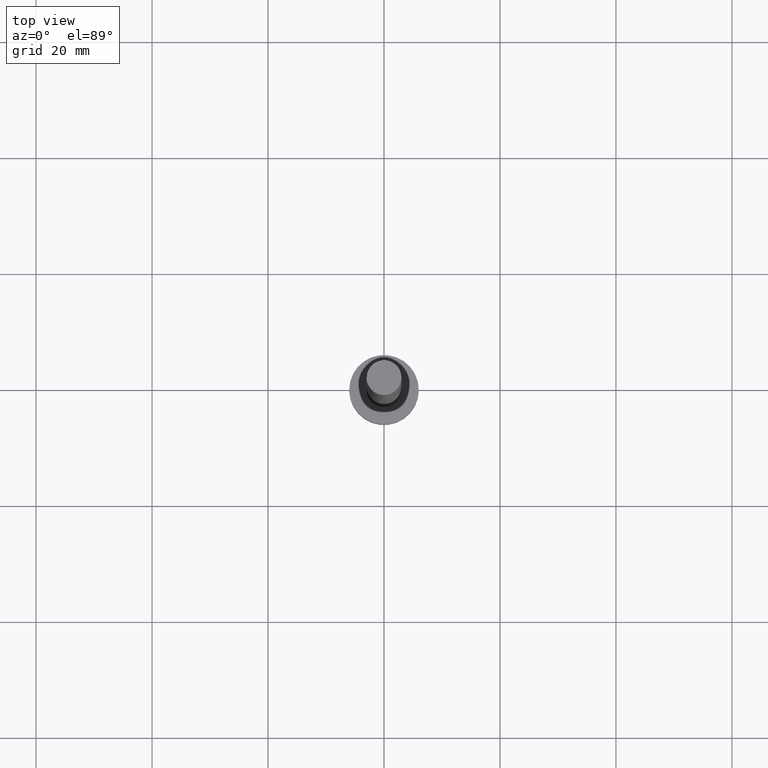
[diagram: clean part render]
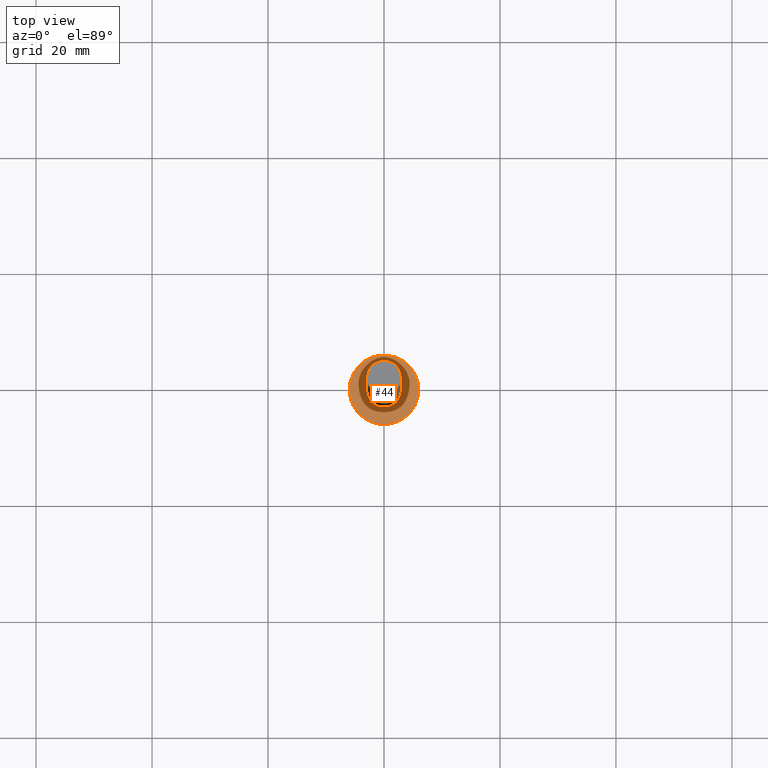
[diagram: same view with one face highlighted and labeled with its STEP entity id]
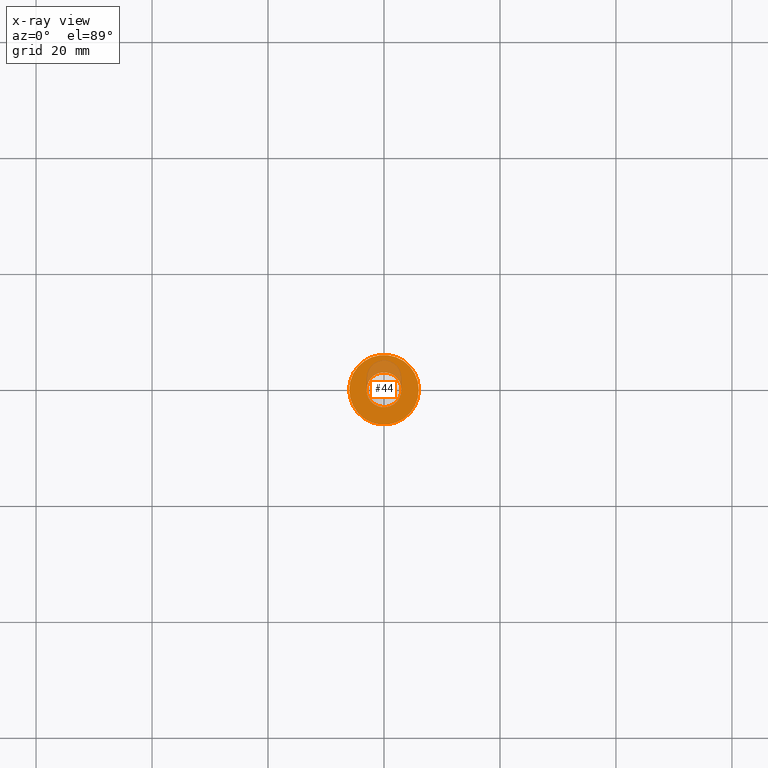
[diagram: x-ray of the same camera — body ghosted, the highlighted face saturated]
A machine part, top view. The second image highlights one B-rep face of the part: STEP entity #44.
The next image is the same camera in x-ray: the body ghosted, the highlighted face saturated — about 15% of this face is hidden behind the body in this view.
In plain terms, the highlighted planar face has unit normal (0, 0, 1).
Its self-contained STEP definition (entity closure, byte-faithful):
#3 = DIRECTION ( 'NONE',  ( 1.000000000000000000, 0.000000000000000000, -0.000000000000000000 ) ) ;
#8 = FACE_BOUND ( 'NONE', #247, .T. ) ;
#13 = VERTEX_POINT ( 'NONE', #75 ) ;
#14 = EDGE_CURVE ( 'NONE', #145, #186, #194, .T. ) ;
#16 = VERTEX_POINT ( 'NONE', #204 ) ;
#22 = AXIS2_PLACEMENT_3D ( 'NONE', #244, #196, #135 ) ;
#32 = CARTESIAN_POINT ( 'NONE',  ( 0.000000000000000000, 0.000000000000000000, 5.000000000000000000 ) ) ;
#36 = CARTESIAN_POINT ( 'NONE',  ( 0.000000000000000000, 0.000000000000000000, 5.000000000000000000 ) ) ;
#44 = ADVANCED_FACE ( 'NONE', ( #8, #53 ), #209, .T. ) ;
#53 = FACE_OUTER_BOUND ( 'NONE', #127, .T. ) ;
#57 = ORIENTED_EDGE ( 'NONE', *, *, #14, .F. ) ;
#75 = CARTESIAN_POINT ( 'NONE',  ( 6.000000000000000888, 7.347880794884120722E-16, 5.000000000000000000 ) ) ;
#81 = CARTESIAN_POINT ( 'NONE',  ( 0.000000000000000000, 0.000000000000000000, 5.000000000000000000 ) ) ;
#82 = DIRECTION ( 'NONE',  ( 0.000000000000000000, 0.000000000000000000, 1.000000000000000000 ) ) ;
#87 = ORIENTED_EDGE ( 'NONE', *, *, #142, .F. ) ;
#88 = AXIS2_PLACEMENT_3D ( 'NONE', #100, #82, #159 ) ;
#96 = CARTESIAN_POINT ( 'NONE',  ( 3.000000000000000444, 3.673940397442060361E-16, 5.000000000000000000 ) ) ;
#100 = CARTESIAN_POINT ( 'NONE',  ( 0.000000000000000000, 0.000000000000000000, 5.000000000000000000 ) ) ;
#102 = DIRECTION ( 'NONE',  ( 1.000000000000000000, 0.000000000000000000, 0.000000000000000000 ) ) ;
#112 = DIRECTION ( 'NONE',  ( 0.000000000000000000, 0.000000000000000000, 1.000000000000000000 ) ) ;
#122 = CIRCLE ( 'NONE', #22, 6.000000000000000888 ) ;
#127 = EDGE_LOOP ( 'NONE', ( #251, #255 ) ) ;
#130 = DIRECTION ( 'NONE',  ( 0.000000000000000000, 0.000000000000000000, 1.000000000000000000 ) ) ;
#135 = DIRECTION ( 'NONE',  ( 1.000000000000000000, 0.000000000000000000, 0.000000000000000000 ) ) ;
#142 = EDGE_CURVE ( 'NONE', #186, #145, #175, .T. ) ;
#145 = VERTEX_POINT ( 'NONE', #190 ) ;
#158 = DIRECTION ( 'NONE',  ( 0.000000000000000000, 0.000000000000000000, 1.000000000000000000 ) ) ;
#159 = DIRECTION ( 'NONE',  ( 1.000000000000000000, 0.000000000000000000, 0.000000000000000000 ) ) ;
#165 = EDGE_CURVE ( 'NONE', #16, #13, #122, .T. ) ;
#171 = AXIS2_PLACEMENT_3D ( 'NONE', #36, #112, #3 ) ;
#175 = CIRCLE ( 'NONE', #217, 3.000000000000000444 ) ;
#186 = VERTEX_POINT ( 'NONE', #96 ) ;
#188 = CIRCLE ( 'NONE', #88, 6.000000000000000888 ) ;
#190 = CARTESIAN_POINT ( 'NONE',  ( -3.000000000000000444, 0.000000000000000000, 5.000000000000000000 ) ) ;
#194 = CIRCLE ( 'NONE', #222, 3.000000000000000444 ) ;
#196 = DIRECTION ( 'NONE',  ( 0.000000000000000000, 0.000000000000000000, 1.000000000000000000 ) ) ;
#204 = CARTESIAN_POINT ( 'NONE',  ( -6.000000000000000888, 0.000000000000000000, 5.000000000000000000 ) ) ;
#209 = PLANE ( 'NONE',  #171 ) ;
#212 = DIRECTION ( 'NONE',  ( 1.000000000000000000, 0.000000000000000000, 0.000000000000000000 ) ) ;
#217 = AXIS2_PLACEMENT_3D ( 'NONE', #81, #158, #212 ) ;
#222 = AXIS2_PLACEMENT_3D ( 'NONE', #32, #130, #102 ) ;
#224 = EDGE_CURVE ( 'NONE', #13, #16, #188, .T. ) ;
#244 = CARTESIAN_POINT ( 'NONE',  ( 0.000000000000000000, 0.000000000000000000, 5.000000000000000000 ) ) ;
#247 = EDGE_LOOP ( 'NONE', ( #57, #87 ) ) ;
#251 = ORIENTED_EDGE ( 'NONE', *, *, #165, .T. ) ;
#255 = ORIENTED_EDGE ( 'NONE', *, *, #224, .T. ) ;